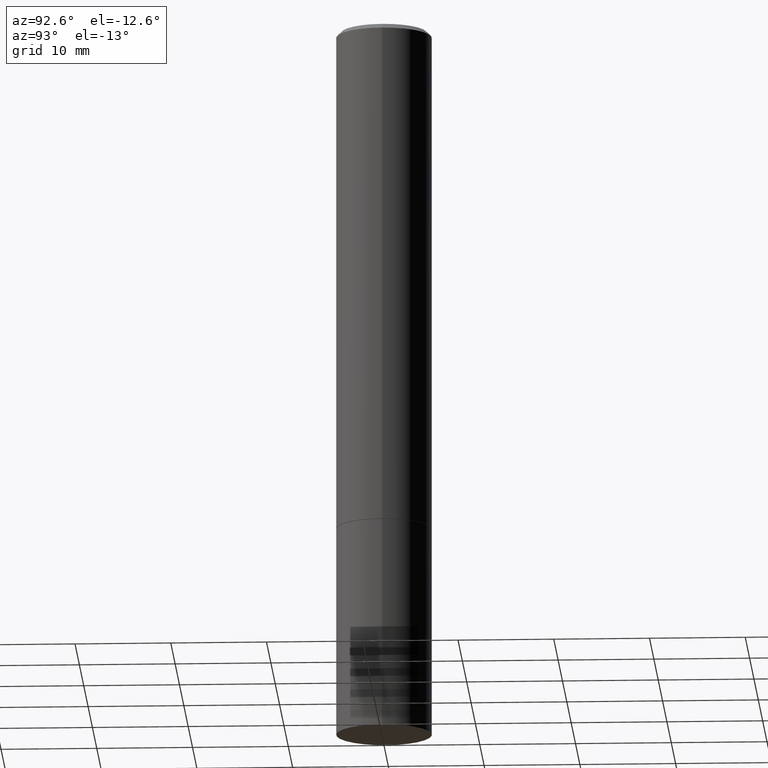
[diagram: clean part render]
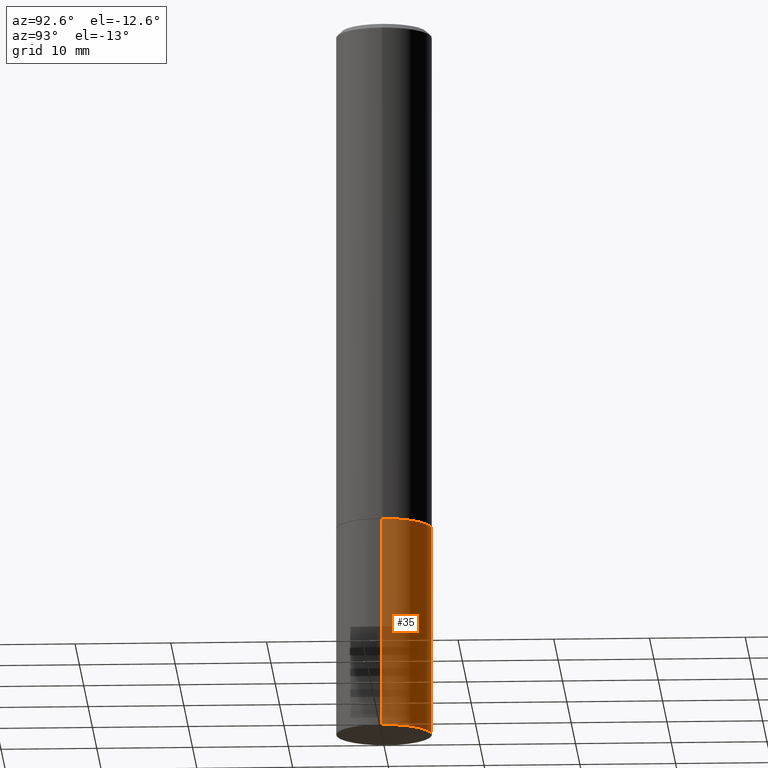
[diagram: same view with one face highlighted and labeled with its STEP entity id]
A machine part, auxiliary view. The second image highlights one B-rep face of the part: STEP entity #35.
In plain terms, the highlighted cylindrical surface (partial cylindrical patch) has radius 5 mm, axis along (-0, 0, 1).
Its self-contained STEP definition (entity closure, byte-faithful):
#2 = AXIS2_PLACEMENT_3D ( 'NONE', #13, #128, #274 ) ;
#3 = CARTESIAN_POINT ( 'NONE',  ( 0.000000000000000000, 0.000000000000000000, 0.000000000000000000 ) ) ;
#12 = AXIS2_PLACEMENT_3D ( 'NONE', #342, #58, #234 ) ;
#13 = CARTESIAN_POINT ( 'NONE',  ( 7.220980290903470182E-29, -1.030964609733603853E-14, -2.952799999999999869 ) ) ;
#28 = DIRECTION ( 'NONE',  ( -2.445468806185136877E-29, 3.491481338843145188E-15, 1.000000000000000000 ) ) ;
#32 = CARTESIAN_POINT ( 'NONE',  ( 0.1968500000000000250, -1.168424230043858014E-14, -2.952799999999999869 ) ) ;
#33 = VERTEX_POINT ( 'NONE', #32 ) ;
#35 = ADVANCED_FACE ( 'NONE', ( #120 ), #206, .T. ) ;
#36 = AXIS2_PLACEMENT_3D ( 'NONE', #3, #317, #212 ) ;
#50 = CARTESIAN_POINT ( 'NONE',  ( -0.1968500000000000250, 1.398703375343757393E-15, -9.682923725166783677E-30 ) ) ;
#58 = DIRECTION ( 'NONE',  ( -2.445468806185136597E-29, 3.491481338843145583E-15, 1.000000000000000000 ) ) ;
#67 = CIRCLE ( 'NONE', #2, 0.1968500000000000250 ) ;
#77 = EDGE_CURVE ( 'NONE', #263, #192, #345, .T. ) ;
#103 = EDGE_CURVE ( 'NONE', #33, #263, #344, .T. ) ;
#120 = FACE_OUTER_BOUND ( 'NONE', #330, .T. ) ;
#122 = ORIENTED_EDGE ( 'NONE', *, *, #103, .F. ) ;
#128 = DIRECTION ( 'NONE',  ( -2.445468806185136597E-29, 3.491481338843145583E-15, 1.000000000000000000 ) ) ;
#143 = VERTEX_POINT ( 'NONE', #267 ) ;
#192 = VERTEX_POINT ( 'NONE', #251 ) ;
#200 = ORIENTED_EDGE ( 'NONE', *, *, #77, .F. ) ;
#204 = VECTOR ( 'NONE', #279, 39.37007874015748143 ) ;
#206 = CYLINDRICAL_SURFACE ( 'NONE', #36, 0.1968500000000000250 ) ;
#212 = DIRECTION ( 'NONE',  ( 1.000000000000000000, -6.982962677686265922E-15, 4.876176775795935793E-29 ) ) ;
#233 = CARTESIAN_POINT ( 'NONE',  ( 0.1968500000000000250, -1.374596203102541608E-15, 9.598753983154300858E-30 ) ) ;
#234 = DIRECTION ( 'NONE',  ( 1.000000000000000000, -6.982962677686267499E-15, 0.000000000000000000 ) ) ;
#235 = VECTOR ( 'NONE', #28, 39.37007874015748143 ) ;
#251 = CARTESIAN_POINT ( 'NONE',  ( -0.1968500000000000250, -7.398956728206258518E-15, -2.086699999999999999 ) ) ;
#254 = EDGE_CURVE ( 'NONE', #143, #192, #306, .T. ) ;
#263 = VERTEX_POINT ( 'NONE', #327 ) ;
#267 = CARTESIAN_POINT ( 'NONE',  ( -0.1968500000000000250, -7.398956728206258518E-15, -2.952799999999999869 ) ) ;
#274 = DIRECTION ( 'NONE',  ( 1.000000000000000000, -6.982962677686267499E-15, 0.000000000000000000 ) ) ;
#275 = EDGE_CURVE ( 'NONE', #33, #143, #67, .T. ) ;
#279 = DIRECTION ( 'NONE',  ( -2.445468806185136877E-29, 3.491481338843145188E-15, 1.000000000000000000 ) ) ;
#281 = ORIENTED_EDGE ( 'NONE', *, *, #254, .T. ) ;
#306 = LINE ( 'NONE', #50, #204 ) ;
#317 = DIRECTION ( 'NONE',  ( -2.445468806185136597E-29, 3.491481338843145583E-15, 1.000000000000000000 ) ) ;
#327 = CARTESIAN_POINT ( 'NONE',  ( 0.1968500000000000250, -8.660270312866532536E-15, -2.086699999999999999 ) ) ;
#330 = EDGE_LOOP ( 'NONE', ( #352, #281, #200, #122 ) ) ;
#342 = CARTESIAN_POINT ( 'NONE',  ( 5.102959757866523939E-29, -7.285674109763990928E-15, -2.086699999999999999 ) ) ;
#344 = LINE ( 'NONE', #233, #235 ) ;
#345 = CIRCLE ( 'NONE', #12, 0.1968500000000000250 ) ;
#352 = ORIENTED_EDGE ( 'NONE', *, *, #275, .T. ) ;